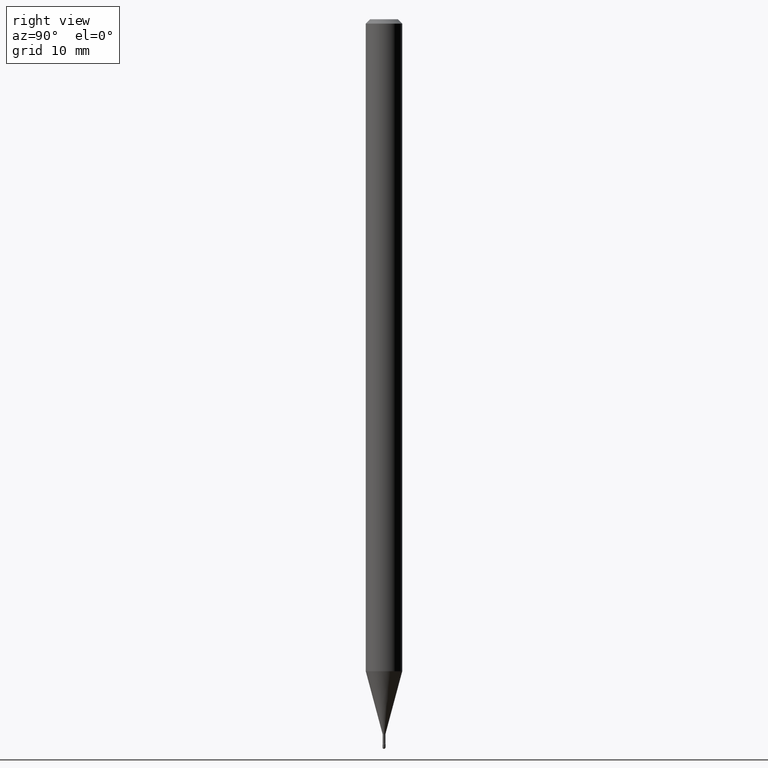
[diagram: clean part render]
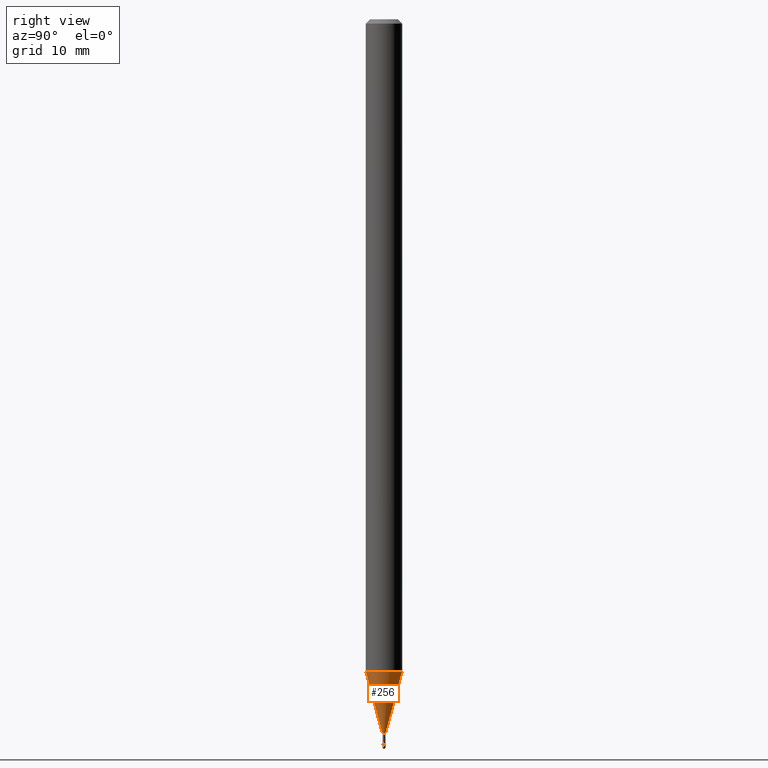
[diagram: same view with one face highlighted and labeled with its STEP entity id]
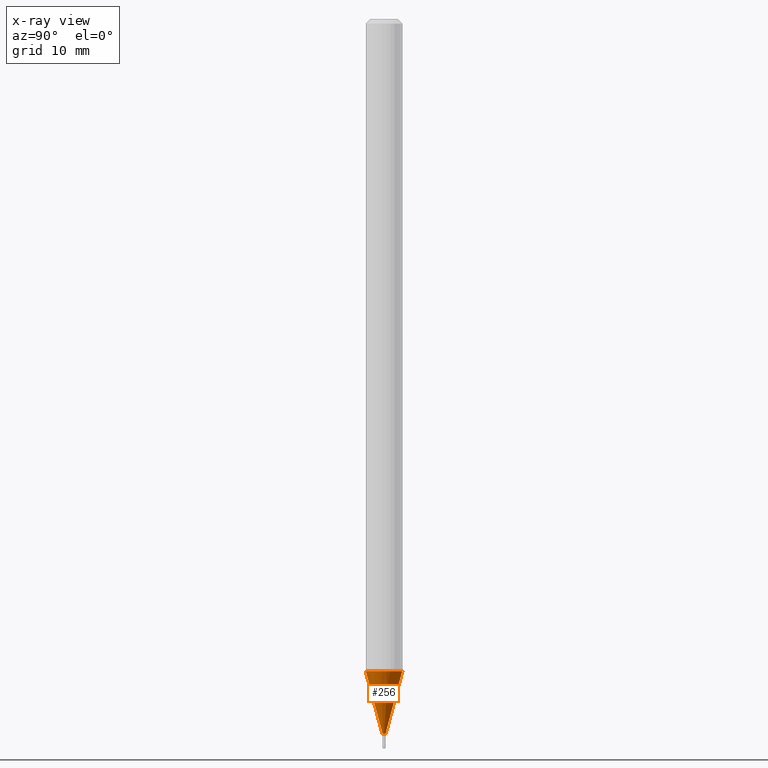
[diagram: x-ray of the same camera — body ghosted, the highlighted face saturated]
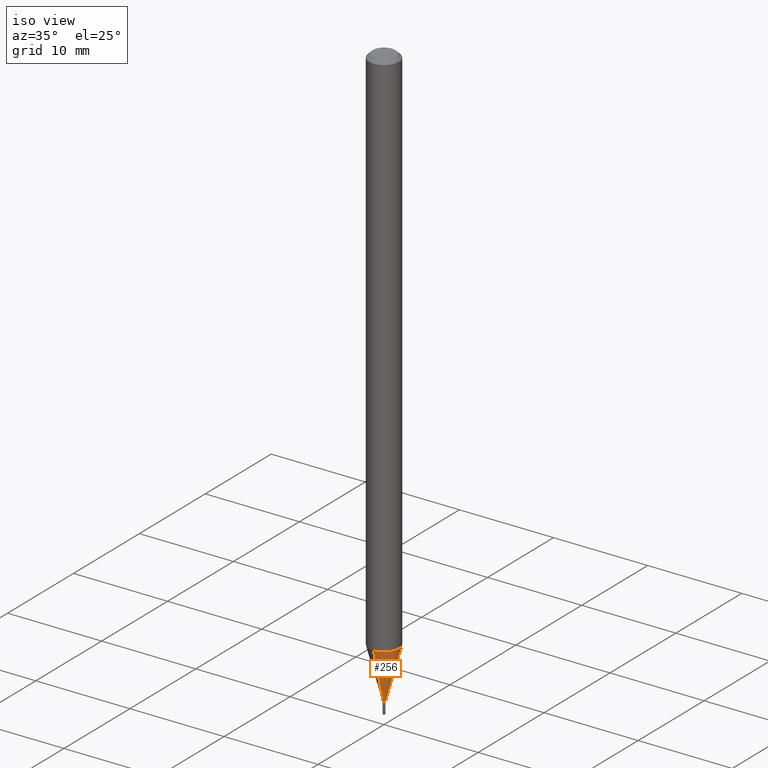
[diagram: same view with one face highlighted and labeled with its STEP entity id]
A machine part, right view. The second image highlights one B-rep face of the part: STEP entity #256.
The next image is the same camera in x-ray: the body ghosted, the highlighted face saturated — about 0% of this face is hidden behind the body in this view.
A second angle (iso view) of the same face is appended — the face is thin or edge-on in the first view.
In plain terms, the highlighted conical surface has half-angle 15 deg.
Its self-contained STEP definition (entity closure, byte-faithful):
#12 = CONICAL_SURFACE ( 'NONE', #473, 0.005211112605663986361, 0.2617993877991499629 ) ;
#29 = DIRECTION ( 'NONE',  ( -6.982962677686265922E-15, -1.000000000000000000, 4.370956789862821150E-15 ) ) ;
#42 = VERTEX_POINT ( 'NONE', #240 ) ;
#54 = EDGE_CURVE ( 'NONE', #190, #126, #556, .T. ) ;
#63 = DIRECTION ( 'NONE',  ( -2.444331714462359119E-29, 3.493109718909404657E-15, 1.000000000000000000 ) ) ;
#93 = ORIENTED_EDGE ( 'NONE', *, *, #115, .F. ) ;
#107 = CARTESIAN_POINT ( 'NONE',  ( 5.983950142056131957E-29, -8.551455710782364148E-15, -2.448092501787273001 ) ) ;
#115 = EDGE_CURVE ( 'NONE', #401, #190, #246, .T. ) ;
#118 = EDGE_CURVE ( 'NONE', #42, #126, #331, .T. ) ;
#126 = VERTEX_POINT ( 'NONE', #467 ) ;
#190 = VERTEX_POINT ( 'NONE', #375 ) ;
#192 = CARTESIAN_POINT ( 'NONE',  ( 5.983950142056131957E-29, -8.551455710782364148E-15, -2.448092501787273001 ) ) ;
#201 = CARTESIAN_POINT ( 'NONE',  ( -3.638900483451220324E-17, -0.005211112605672538547, -2.448092501787273001 ) ) ;
#216 = CIRCLE ( 'NONE', #364, 0.005211112605663986361 ) ;
#232 = CARTESIAN_POINT ( 'NONE',  ( -3.638900483451220324E-17, -0.005211112605672538547, -2.448092501787273001 ) ) ;
#238 = DIRECTION ( 'NONE',  ( -6.982962677686265922E-15, -1.000000000000000000, 0.000000000000000000 ) ) ;
#239 = DIRECTION ( 'NONE',  ( -6.982962677686265922E-15, -1.000000000000000000, 0.000000000000000000 ) ) ;
#240 = CARTESIAN_POINT ( 'NONE',  ( 2.405581959610007950E-16, 0.005211112605655434174, -2.448092501787273001 ) ) ;
#245 = CARTESIAN_POINT ( 'NONE',  ( 5.461339705824889483E-29, -7.804611252969332594E-15, -2.234287463322519596 ) ) ;
#246 = LINE ( 'NONE', #201, #351 ) ;
#256 = ADVANCED_FACE ( 'NONE', ( #536 ), #12, .T. ) ;
#284 = EDGE_LOOP ( 'NONE', ( #313, #322, #458, #93 ) ) ;
#308 = AXIS2_PLACEMENT_3D ( 'NONE', #245, #63, #29 ) ;
#313 = ORIENTED_EDGE ( 'NONE', *, *, #417, .T. ) ;
#322 = ORIENTED_EDGE ( 'NONE', *, *, #118, .T. ) ;
#331 = LINE ( 'NONE', #411, #426 ) ;
#351 = VECTOR ( 'NONE', #504, 39.37007874015748143 ) ;
#364 = AXIS2_PLACEMENT_3D ( 'NONE', #192, #404, #239 ) ;
#375 = CARTESIAN_POINT ( 'NONE',  ( -4.364351673553370901E-16, -0.06250000000000781319, -2.234287463322519152 ) ) ;
#401 = VERTEX_POINT ( 'NONE', #232 ) ;
#404 = DIRECTION ( 'NONE',  ( -2.444331714462359119E-29, 3.493109718909404657E-15, 1.000000000000000000 ) ) ;
#411 = CARTESIAN_POINT ( 'NONE',  ( 3.702718207188416037E-17, 0.005211112605655434174, -2.448092501787273001 ) ) ;
#417 = EDGE_CURVE ( 'NONE', #401, #42, #216, .T. ) ;
#426 = VECTOR ( 'NONE', #506, 39.37007874015748854 ) ;
#458 = ORIENTED_EDGE ( 'NONE', *, *, #54, .F. ) ;
#467 = CARTESIAN_POINT ( 'NONE',  ( 4.440892098501170476E-16, 0.06249999999999218681, -2.234287463322519596 ) ) ;
#473 = AXIS2_PLACEMENT_3D ( 'NONE', #107, #501, #238 ) ;
#501 = DIRECTION ( 'NONE',  ( -2.444331714462359119E-29, 3.493109718909404657E-15, 1.000000000000000000 ) ) ;
#504 = DIRECTION ( 'NONE',  ( -1.807323732225328167E-15, -0.2588190451025179084, 0.9659258262890690894 ) ) ;
#506 = DIRECTION ( 'NONE',  ( 1.839019923739597949E-15, 0.2588190451025246253, 0.9659258262890670910 ) ) ;
#536 = FACE_OUTER_BOUND ( 'NONE', #284, .T. ) ;
#556 = CIRCLE ( 'NONE', #308, 0.06250000000000000000 ) ;